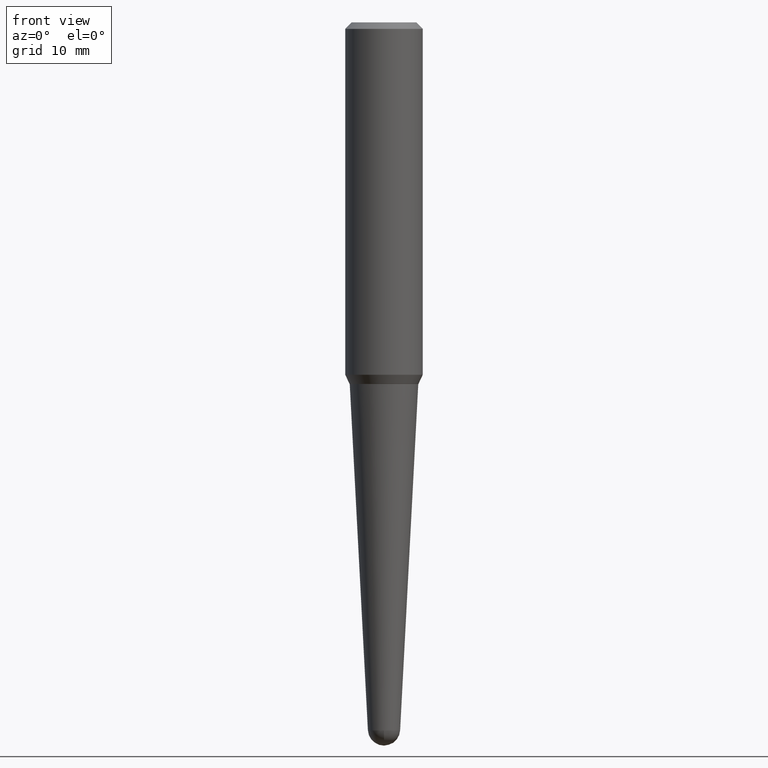
[diagram: clean part render]
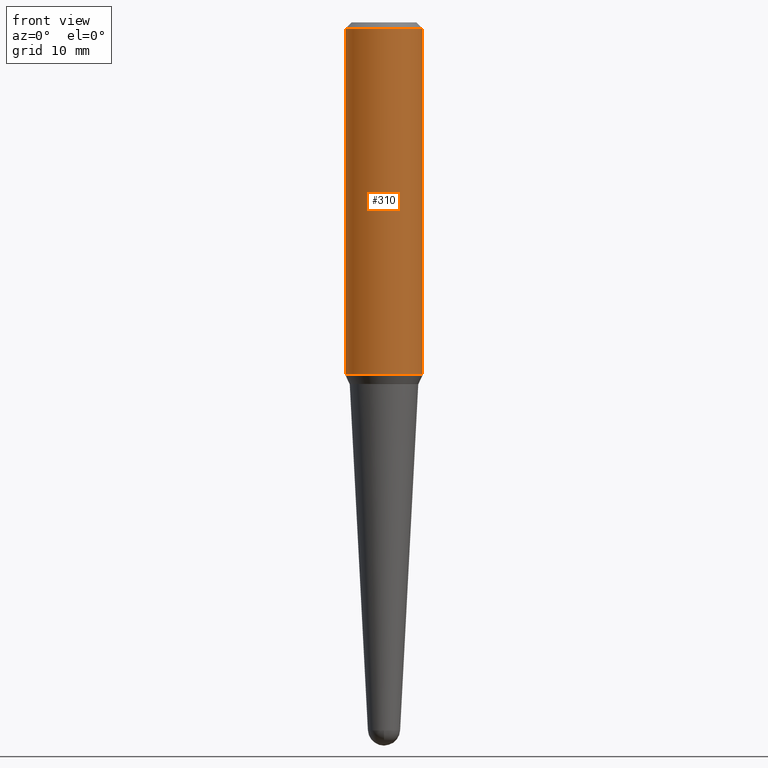
[diagram: same view with one face highlighted and labeled with its STEP entity id]
A machine part, front view. The second image highlights one B-rep face of the part: STEP entity #310.
In plain terms, the highlighted cylindrical surface (partial cylindrical patch) has radius 4.7625 mm, axis along (-0, 0, 1).
Its self-contained STEP definition (entity closure, byte-faithful):
#11 = ORIENTED_EDGE ( 'NONE', *, *, #33, .F. ) ;
#23 = DIRECTION ( 'NONE',  ( -2.445468806185136877E-29, 3.491481338843145188E-15, 1.000000000000000000 ) ) ;
#33 = EDGE_CURVE ( 'NONE', #401, #336, #405, .T. ) ;
#50 = CARTESIAN_POINT ( 'NONE',  ( -0.1874999999999999722, -1.699068257207900914E-15, -0.03125000000000003469 ) ) ;
#64 = VECTOR ( 'NONE', #23, 39.37007874015748143 ) ;
#82 = CARTESIAN_POINT ( 'NONE',  ( 7.642090019328561499E-31, -1.091087918388484350E-16, -0.03125000000000003469 ) ) ;
#88 = DIRECTION ( 'NONE',  ( -2.445468806185136597E-29, 3.491481338843145583E-15, 1.000000000000000000 ) ) ;
#90 = AXIS2_PLACEMENT_3D ( 'NONE', #82, #88, #289 ) ;
#95 = CARTESIAN_POINT ( 'NONE',  ( 4.169935664663897396E-29, -5.953562981677331975E-15, -1.705168209104609645 ) ) ;
#103 = AXIS2_PLACEMENT_3D ( 'NONE', #95, #276, #268 ) ;
#113 = ORIENTED_EDGE ( 'NONE', *, *, #340, .T. ) ;
#118 = LINE ( 'NONE', #236, #264 ) ;
#132 = EDGE_CURVE ( 'NONE', #138, #401, #246, .T. ) ;
#138 = VERTEX_POINT ( 'NONE', #444 ) ;
#141 = ORIENTED_EDGE ( 'NONE', *, *, #448, .T. ) ;
#153 = DIRECTION ( 'NONE',  ( -2.445468806185136877E-29, 3.491481338843145188E-15, 1.000000000000000000 ) ) ;
#159 = FACE_OUTER_BOUND ( 'NONE', #400, .T. ) ;
#226 = AXIS2_PLACEMENT_3D ( 'NONE', #263, #294, #331 ) ;
#236 = CARTESIAN_POINT ( 'NONE',  ( 0.1875000000000001110, -1.309305502066173628E-15, 5.931196827434387479E-16 ) ) ;
#246 = LINE ( 'NONE', #279, #64 ) ;
#259 = CYLINDRICAL_SURFACE ( 'NONE', #226, 0.1875000000000001110 ) ;
#263 = CARTESIAN_POINT ( 'NONE',  ( -1.450455682483482035E-44, 2.070866303999251778E-30, 5.931196827434296760E-16 ) ) ;
#264 = VECTOR ( 'NONE', #153, 39.37007874015748143 ) ;
#268 = DIRECTION ( 'NONE',  ( 1.000000000000000000, -6.982962677686265133E-15, 0.000000000000000000 ) ) ;
#276 = DIRECTION ( 'NONE',  ( -2.445468806185136597E-29, 3.491481338843145583E-15, 1.000000000000000000 ) ) ;
#279 = CARTESIAN_POINT ( 'NONE',  ( -0.1875000000000001110, 1.332267629550190807E-15, 5.931196827434205055E-16 ) ) ;
#289 = DIRECTION ( 'NONE',  ( 1.000000000000000000, -6.982962677686266711E-15, 0.000000000000000000 ) ) ;
#294 = DIRECTION ( 'NONE',  ( -2.445468806185136597E-29, 3.491481338843145583E-15, 1.000000000000000000 ) ) ;
#300 = CIRCLE ( 'NONE', #103, 0.1875000000000002220 ) ;
#310 = ADVANCED_FACE ( 'NONE', ( #159 ), #259, .T. ) ;
#315 = ORIENTED_EDGE ( 'NONE', *, *, #132, .F. ) ;
#331 = DIRECTION ( 'NONE',  ( 1.000000000000000000, -6.982962677686266711E-15, 4.852736867747363404E-29 ) ) ;
#336 = VERTEX_POINT ( 'NONE', #425 ) ;
#340 = EDGE_CURVE ( 'NONE', #361, #336, #118, .T. ) ;
#361 = VERTEX_POINT ( 'NONE', #435 ) ;
#400 = EDGE_LOOP ( 'NONE', ( #315, #141, #113, #11 ) ) ;
#401 = VERTEX_POINT ( 'NONE', #50 ) ;
#405 = CIRCLE ( 'NONE', #90, 0.1874999999999999722 ) ;
#425 = CARTESIAN_POINT ( 'NONE',  ( 0.1874999999999999722, -1.418414293905023123E-15, -0.03125000000000003469 ) ) ;
#435 = CARTESIAN_POINT ( 'NONE',  ( 0.1875000000000002220, -7.262868483743506194E-15, -1.705168209104609645 ) ) ;
#444 = CARTESIAN_POINT ( 'NONE',  ( -0.1875000000000002220, -4.621295352127141759E-15, -1.705168209104609645 ) ) ;
#448 = EDGE_CURVE ( 'NONE', #138, #361, #300, .T. ) ;